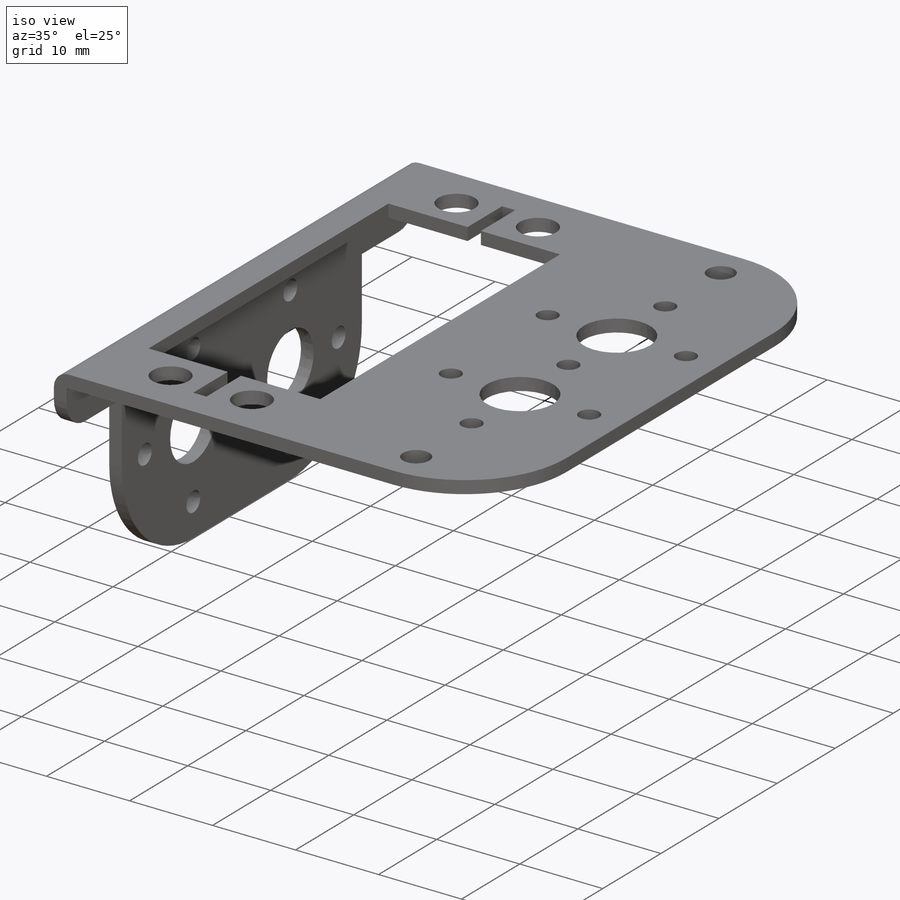
[diagram: iso view]
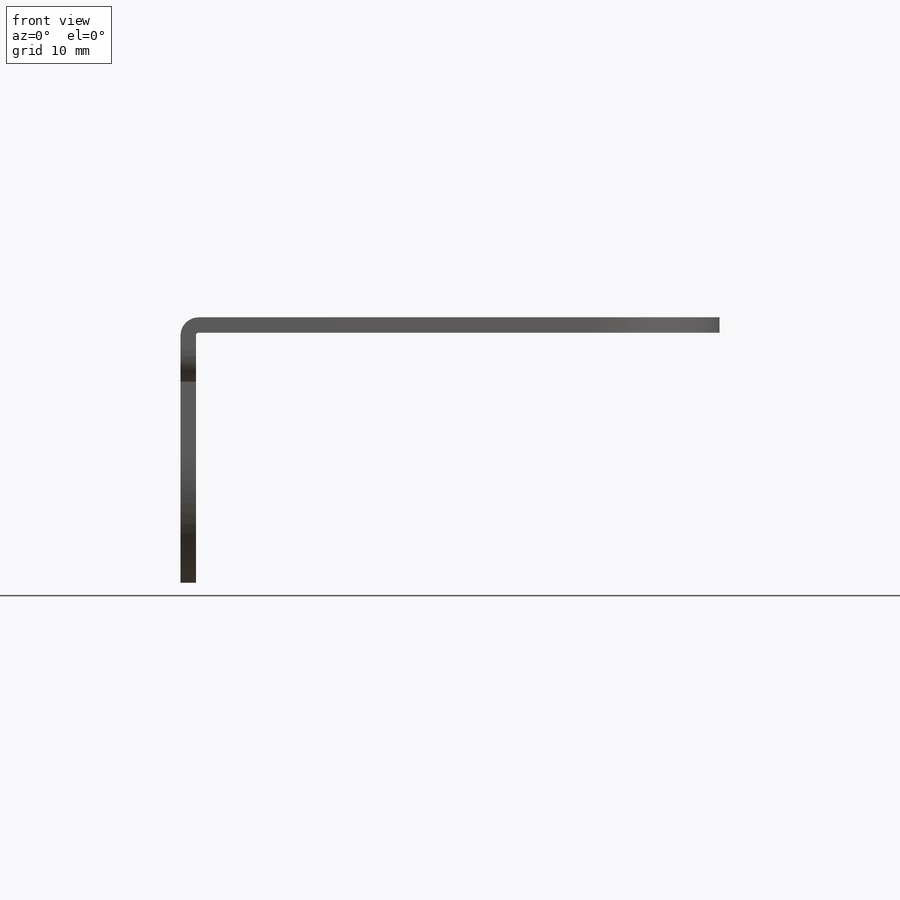
[diagram: front view]
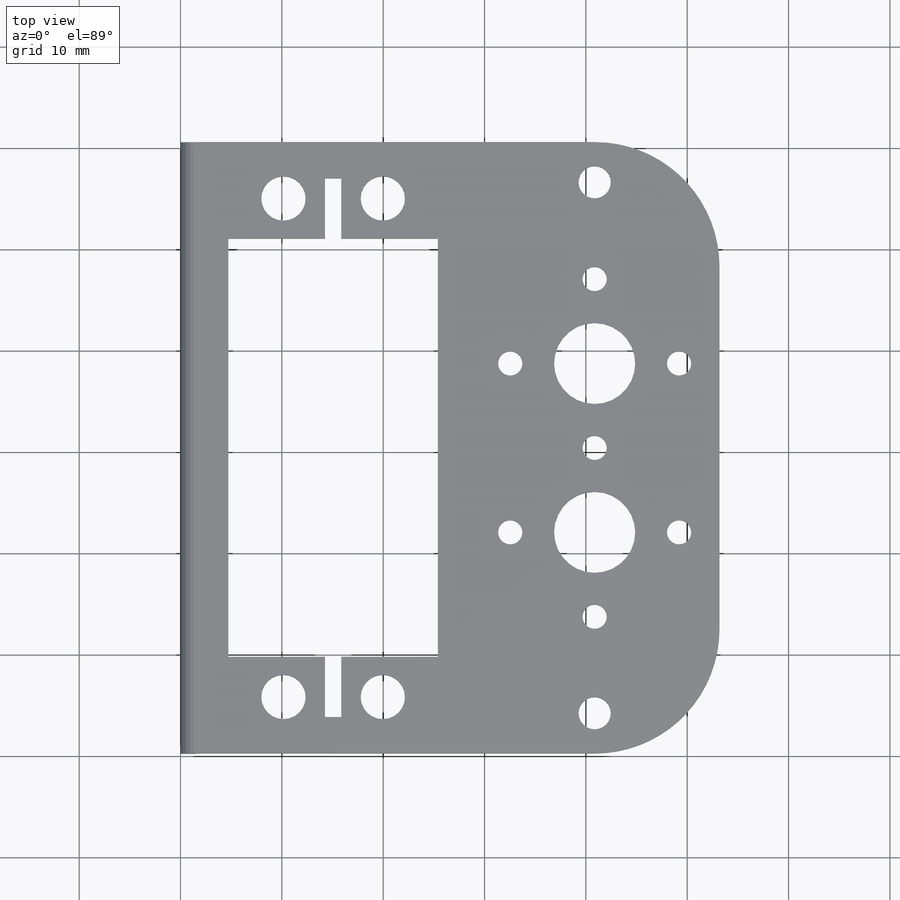
[diagram: top view]
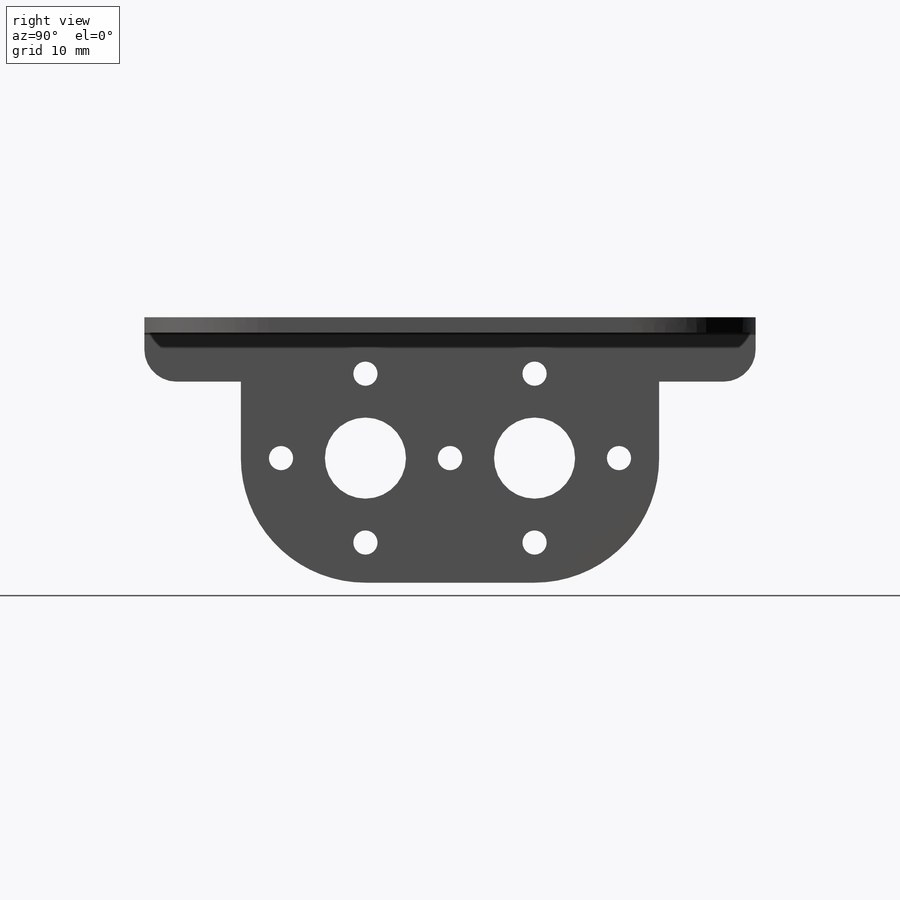
[diagram: right view]
SOLIDWORKS PART (.sldprt)
format: sldprt  version: not decoded by parser v0  size: 440,832 bytes
history: native  units: mm
features: sketch x8, cut_extrude x7, fillet x4, material x1, extrude x1 (+14 scaffold rows collapsed)
feature tree (35):
  scaffold x14  (default folders/planes/origin — collapsed)
  material  "6061 Alloy"
  sketch  "Sketch1"  dims[D1=1.524mm D2=26.1874mm D3=53.1876mm]
  extrude  "Main Body"  Depth=60.325mm
  sketch  "Sketch2"  dims[D1=9.525mm D2=6.35mm]
  cut_extrude  "Cut-Extrude1"  [1 undecoded]
  sketch  "Sketch22"  dims[D1=8.001mm D2=16.6624mm D3=2.3876mm D4=13.8938mm D5=21.8186mm]
  cut_extrude  "Servo Horn Mtg -01"  [1 undecoded]
  sketch  "Sketch21"  dims[D1=8.001mm D2=16.6624mm D3=2.3876mm D4=38.5064mm]
  cut_extrude  "Servo Horn Mtg -02"  [1 undecoded]
  sketch  "Sketch23"  dims[D1=8.001mm D2=16.6624mm D3=2.3876mm D4=40.8686mm]
  cut_extrude  "Servo Horn Mtg -03"  [1 undecoded]
  sketch  "Sketch24"  dims[D1=8.001mm D2=16.6624mm D3=2.3876mm]
  cut_extrude  "Servo Horn Mtg -04"  [1 undecoded]
  sketch  "Sketch25"  dims[D1=3.175mm D2=3.9624mm D3=3.9624mm]
  cut_extrude  ".125 holes"  [1 undecoded]
  sketch  "Sketch26"  dims[c1.D9=4.3688mm c1.D10=4.3688mm c1.D11=4.3688mm c1.D12=4.3688mm c1.D13=4.3688mm c1.D1=20.6756mm c1.D2=41.275mm c1.D3=~2.64511mm c1.D4=1.6002mm c1.D5=4.7244mm c1.D6=25.4mm c1.D7=9.525mm c1.D8=50.8mm c2.D3=3.5814mm c2.D10=9.8044mm c2.D11=4.9022mm c2.D12=49.1998mm c2.D13=24.5999mm]
  cut_extrude  "Cut-Extrude2"  [1 undecoded]
  fillet  "Fillet1"  Radius=3.175mm
  fillet  "Fillet2"  Radius=12.2936mm
  fillet  "Fillet3"  Radius=0.254mm
  fillet  "Fillet4"  Radius=1.778mm
decode coverage: 13 of 20 modeling features carry decoded parameters
note: ~ marks probable driven/reference dimensions
note: 7 parameter values undecoded
summary: no parameter record found for 7 features
note: suppression state not decoded; provenance and decode notes live in map.json
